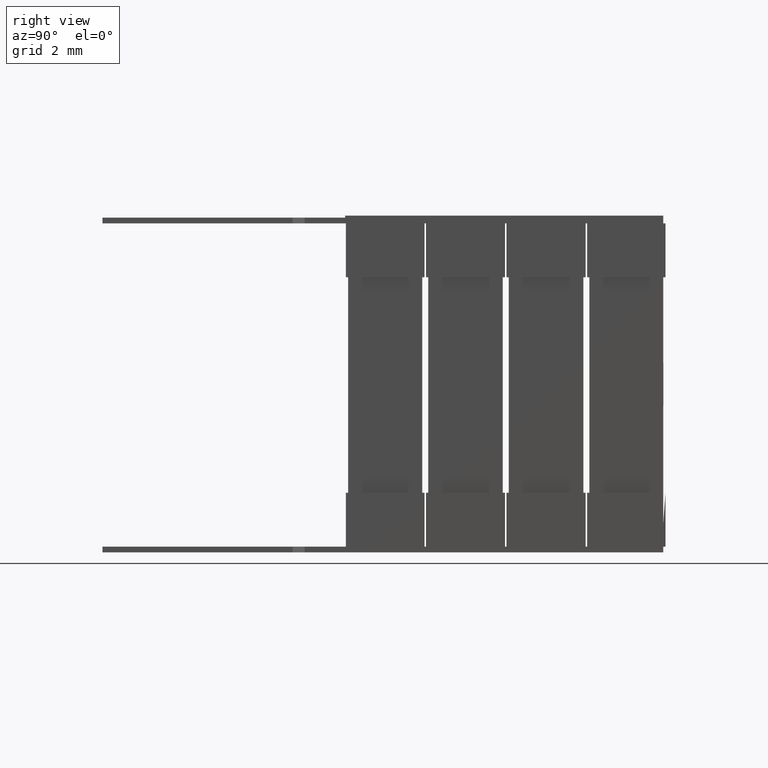
[diagram: clean part render]
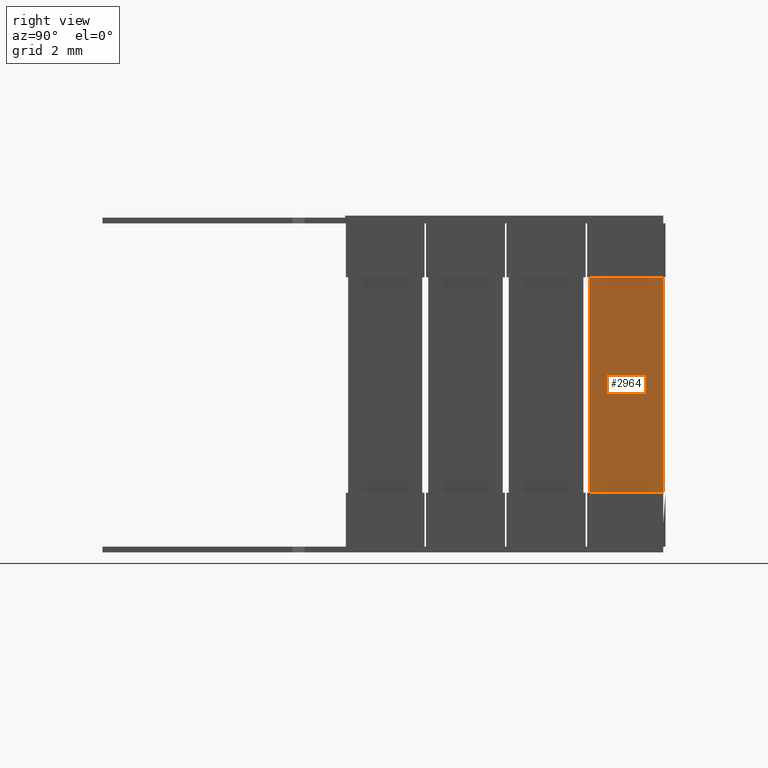
[diagram: same view with one face highlighted and labeled with its STEP entity id]
A machine part, right view. The second image highlights one B-rep face of the part: STEP entity #2964.
In plain terms, the highlighted planar face has unit normal (1, 0, 0).
Its self-contained STEP definition (entity closure, byte-faithful):
#30 = VECTOR ( 'NONE', #7821, 1000.000000000000000 ) ;
#483 = LINE ( 'NONE', #3379, #6758 ) ;
#610 = PLANE ( 'NONE',  #6785 ) ;
#709 = VECTOR ( 'NONE', #2734, 1000.000000000000000 ) ;
#788 = ORIENTED_EDGE ( 'NONE', *, *, #7632, .T. ) ;
#816 = DIRECTION ( 'NONE',  ( -0.0000000000000000000, 1.000000000000000000, 1.648976688190881000E-016 ) ) ;
#1084 = ORIENTED_EDGE ( 'NONE', *, *, #2105, .T. ) ;
#1282 = VERTEX_POINT ( 'NONE', #1685 ) ;
#1685 = CARTESIAN_POINT ( 'NONE',  ( 10.69500000000000200, 8.152499999999999900, -8.994999999999999200 ) ) ;
#2105 = EDGE_CURVE ( 'NONE', #6672, #7782, #7240, .T. ) ;
#2640 = LINE ( 'NONE', #6636, #709 ) ;
#2734 = DIRECTION ( 'NONE',  ( 0.0000000000000000000, 2.411012475297855500E-016, -1.000000000000000000 ) ) ;
#2764 = CARTESIAN_POINT ( 'NONE',  ( 10.69500000000000200, 10.62000000000000100, -1.799999998505076100 ) ) ;
#2964 = ADVANCED_FACE ( 'NONE', ( #6119 ), #610, .T. ) ;
#3148 = DIRECTION ( 'NONE',  ( 0.0000000000000000000, 0.0000000000000000000, -1.000000000000000000 ) ) ;
#3379 = CARTESIAN_POINT ( 'NONE',  ( 10.69500000000000200, 10.62000000000000100, -8.994999999999999200 ) ) ;
#4133 = VERTEX_POINT ( 'NONE', #6162 ) ;
#4157 = ORIENTED_EDGE ( 'NONE', *, *, #4780, .T. ) ;
#4695 = EDGE_LOOP ( 'NONE', ( #6368, #788, #4157, #1084 ) ) ;
#4741 = DIRECTION ( 'NONE',  ( 0.0000000000000000000, -1.000000000000000000, -1.236732516143160800E-016 ) ) ;
#4780 = EDGE_CURVE ( 'NONE', #4133, #6672, #5187, .T. ) ;
#5187 = LINE ( 'NONE', #7141, #30 ) ;
#5422 = CARTESIAN_POINT ( 'NONE',  ( 10.69500000000000200, 10.62000000000000100, -1.799999998505076100 ) ) ;
#6119 = FACE_OUTER_BOUND ( 'NONE', #4695, .T. ) ;
#6162 = CARTESIAN_POINT ( 'NONE',  ( 10.69500000000000200, 10.62000000000000100, -8.994999999999999200 ) ) ;
#6368 = ORIENTED_EDGE ( 'NONE', *, *, #6657, .T. ) ;
#6427 = CARTESIAN_POINT ( 'NONE',  ( 10.69500000000000200, 0.0000000000000000000, 0.0000000000000000000 ) ) ;
#6456 = DIRECTION ( 'NONE',  ( 1.000000000000000000, 0.0000000000000000000, 0.0000000000000000000 ) ) ;
#6636 = CARTESIAN_POINT ( 'NONE',  ( 10.69500000000000200, 8.152499999999999900, -8.994999999999999200 ) ) ;
#6657 = EDGE_CURVE ( 'NONE', #7782, #1282, #2640, .T. ) ;
#6672 = VERTEX_POINT ( 'NONE', #2764 ) ;
#6758 = VECTOR ( 'NONE', #816, 1000.000000000000000 ) ;
#6785 = AXIS2_PLACEMENT_3D ( 'NONE', #6427, #6456, #3148 ) ;
#7049 = VECTOR ( 'NONE', #4741, 1000.000000000000000 ) ;
#7113 = CARTESIAN_POINT ( 'NONE',  ( 10.69500000000000200, 8.152499999999999900, -1.799999998505076300 ) ) ;
#7141 = CARTESIAN_POINT ( 'NONE',  ( 10.69500000000000200, 10.62000000000000100, -1.799999998505076100 ) ) ;
#7240 = LINE ( 'NONE', #5422, #7049 ) ;
#7632 = EDGE_CURVE ( 'NONE', #1282, #4133, #483, .T. ) ;
#7782 = VERTEX_POINT ( 'NONE', #7113 ) ;
#7821 = DIRECTION ( 'NONE',  ( -0.0000000000000000000, -0.0000000000000000000, 1.000000000000000000 ) ) ;